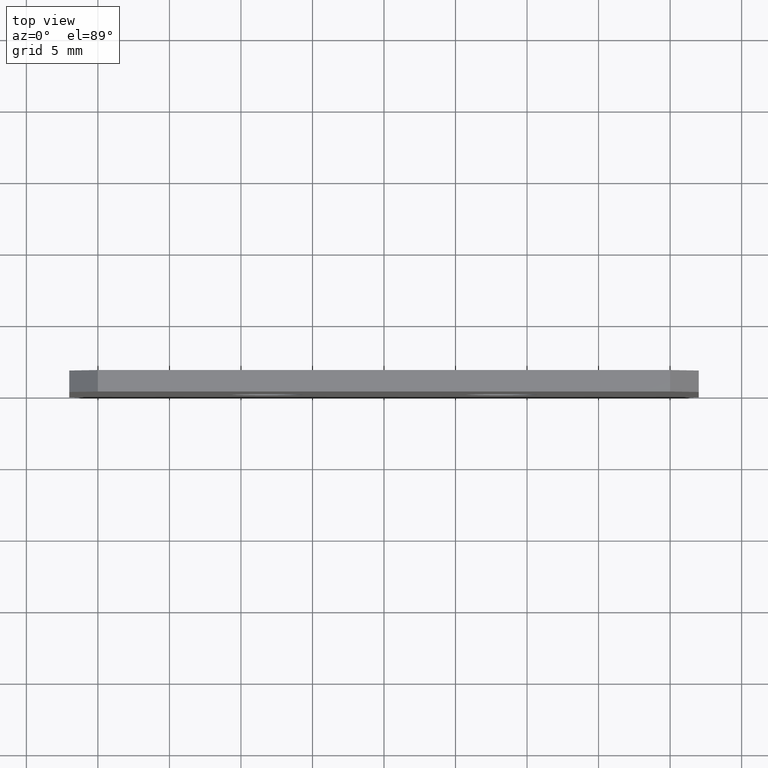
[diagram: clean part render]
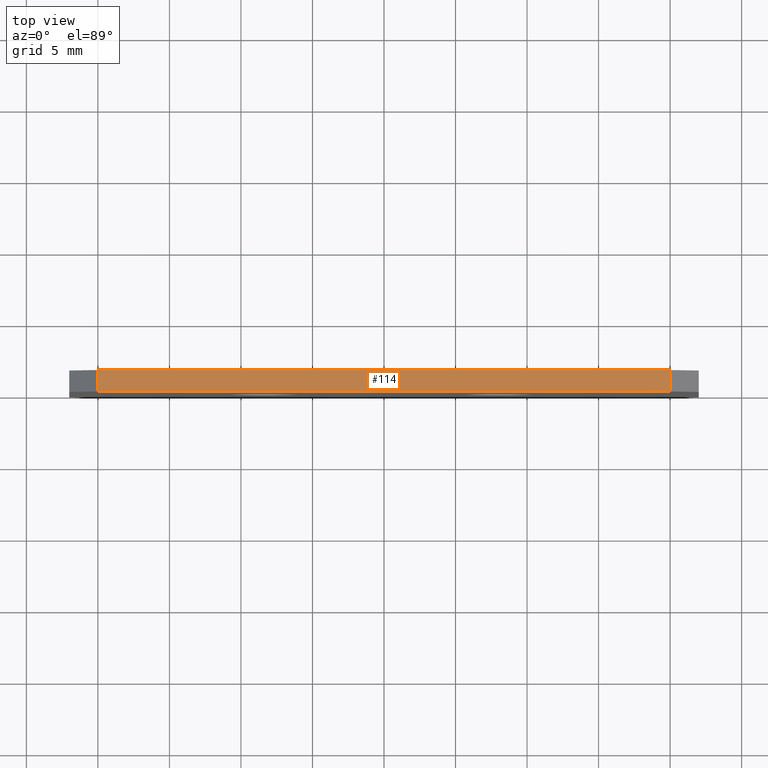
[diagram: same view with one face highlighted and labeled with its STEP entity id]
A machine part, top view. The second image highlights one B-rep face of the part: STEP entity #114.
In plain terms, the highlighted planar face has unit normal (-0, 0, -1).
Its self-contained STEP definition (entity closure, byte-faithful):
#53 = VERTEX_POINT ( 'NONE', #252 ) ;
#55 = EDGE_CURVE ( 'NONE', #53, #56, #276, .T. ) ;
#56 = VERTEX_POINT ( 'NONE', #269 ) ;
#79 = VERTEX_POINT ( 'NONE', #287 ) ;
#81 = EDGE_CURVE ( 'NONE', #82, #79, #300, .T. ) ;
#82 = VERTEX_POINT ( 'NONE', #296 ) ;
#111 = EDGE_CURVE ( 'NONE', #53, #82, #343, .T. ) ;
#114 = ADVANCED_FACE ( 'NONE', ( #339 ), #371, .F. ) ;
#115 = EDGE_LOOP ( 'NONE', ( #116, #117, #119, #120 ) ) ;
#116 = ORIENTED_EDGE ( 'NONE', *, *, #81, .T. ) ;
#117 = ORIENTED_EDGE ( 'NONE', *, *, #118, .F. ) ;
#118 = EDGE_CURVE ( 'NONE', #56, #79, #457, .T. ) ;
#119 = ORIENTED_EDGE ( 'NONE', *, *, #55, .F. ) ;
#120 = ORIENTED_EDGE ( 'NONE', *, *, #111, .T. ) ;
#252 = CARTESIAN_POINT ( 'NONE',  ( -19.99999999999999600, 1.500000000000000000, 13.00000000000000500 ) ) ;
#269 = CARTESIAN_POINT ( 'NONE',  ( 20.00000000000000400, 1.500000000000000000, 12.99999999999999800 ) ) ;
#270 = DIRECTION ( 'NONE',  ( 1.000000000000000000, 0.0000000000000000000, -1.734723475976807100E-016 ) ) ;
#274 = VECTOR ( 'NONE', #270, 1000.000000000000000 ) ;
#275 = CARTESIAN_POINT ( 'NONE',  ( -19.99999999999999600, 1.500000000000000000, 13.00000000000000500 ) ) ;
#276 = LINE ( 'NONE', #275, #274 ) ;
#287 = CARTESIAN_POINT ( 'NONE',  ( 20.00000000000000400, 0.0000000000000000000, 12.99999999999999800 ) ) ;
#292 = CARTESIAN_POINT ( 'NONE',  ( -19.99999999999999600, 0.0000000000000000000, 13.00000000000000500 ) ) ;
#296 = CARTESIAN_POINT ( 'NONE',  ( -19.99999999999999600, 0.0000000000000000000, 13.00000000000000500 ) ) ;
#297 = DIRECTION ( 'NONE',  ( 1.000000000000000000, 0.0000000000000000000, -1.734723475976807100E-016 ) ) ;
#298 = VECTOR ( 'NONE', #297, 1000.000000000000000 ) ;
#300 = LINE ( 'NONE', #292, #298 ) ;
#339 = FACE_OUTER_BOUND ( 'NONE', #115, .T. ) ;
#340 = DIRECTION ( 'NONE',  ( -0.0000000000000000000, -1.000000000000000000, -0.0000000000000000000 ) ) ;
#341 = VECTOR ( 'NONE', #340, 1000.000000000000000 ) ;
#342 = CARTESIAN_POINT ( 'NONE',  ( -19.99999999999999600, 1.500000000000000000, 13.00000000000000500 ) ) ;
#343 = LINE ( 'NONE', #342, #341 ) ;
#359 = DIRECTION ( 'NONE',  ( -1.734723475976806800E-016, 0.0000000000000000000, -1.000000000000000000 ) ) ;
#369 = DIRECTION ( 'NONE',  ( -1.000000000000000000, 0.0000000000000000000, 1.734723475976806800E-016 ) ) ;
#370 = CARTESIAN_POINT ( 'NONE',  ( 20.00000000000000400, 1.500000000000000000, 12.99999999999999800 ) ) ;
#371 = PLANE ( 'NONE',  #431 ) ;
#427 = DIRECTION ( 'NONE',  ( -0.0000000000000000000, -1.000000000000000000, -0.0000000000000000000 ) ) ;
#431 = AXIS2_PLACEMENT_3D ( 'NONE', #465, #359, #369 ) ;
#457 = LINE ( 'NONE', #370, #458 ) ;
#458 = VECTOR ( 'NONE', #427, 1000.000000000000000 ) ;
#465 = CARTESIAN_POINT ( 'NONE',  ( -19.99999999999999600, 1.500000000000000000, 13.00000000000000500 ) ) ;